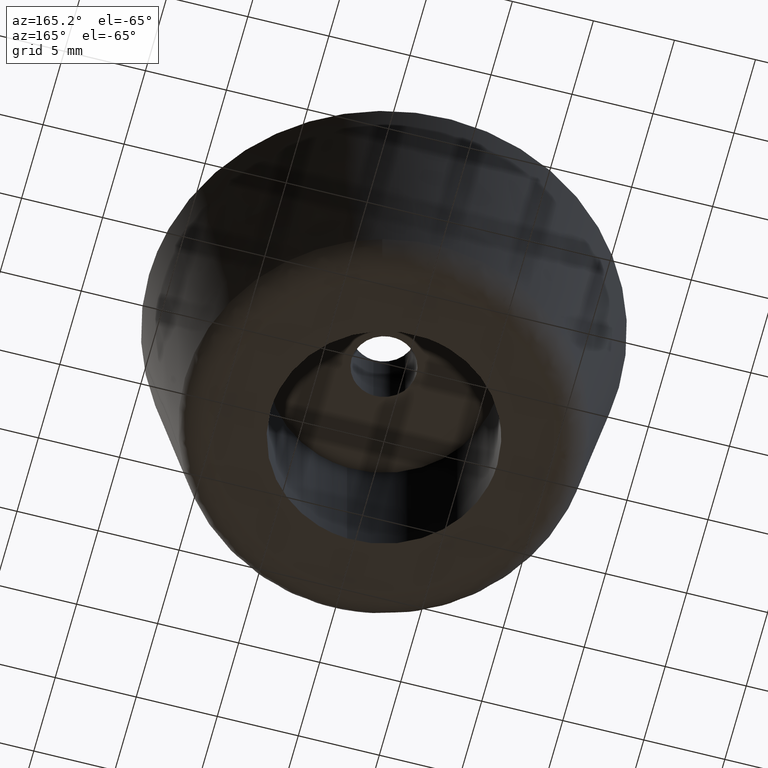
[diagram: clean part render]
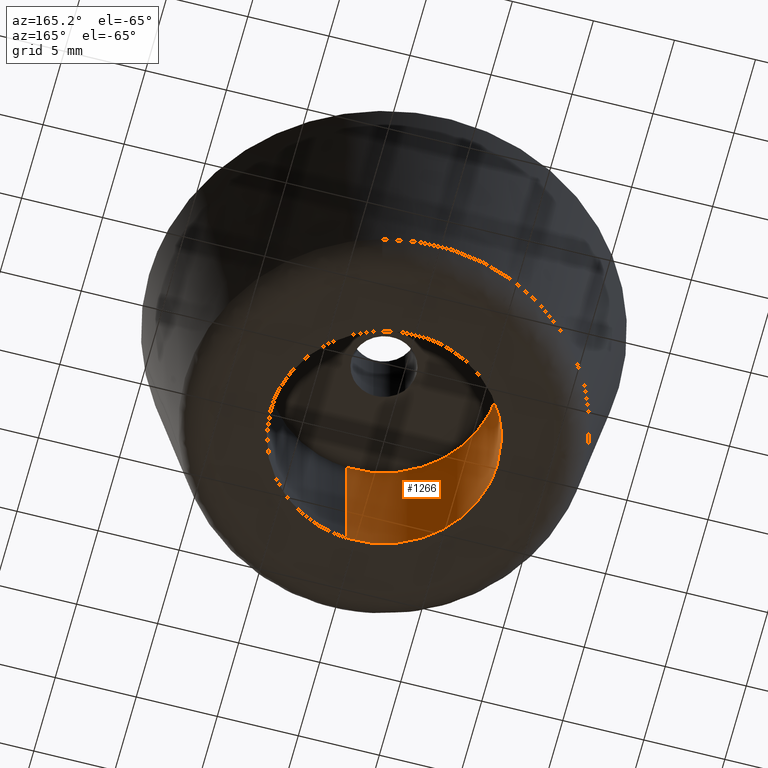
[diagram: same view with one face highlighted and labeled with its STEP entity id]
A machine part, auxiliary view. The second image highlights one B-rep face of the part: STEP entity #1266.
In plain terms, the highlighted face is a freeform B-spline surface patch.
Its self-contained STEP definition (entity closure, byte-faithful):
#1103=CARTESIAN_POINT('',(-0.826234102055871,6.951067343118522,-2.302776E-014));
#1104=VERTEX_POINT('',#1103);
#1122=CARTESIAN_POINT('',(0.427331635497001,-6.986944086883543,-3.233525E-014));
#1123=VERTEX_POINT('',#1122);
#1137=CARTESIAN_POINT('',(0.427331736019021,-6.986944080735587,10.0));
#1138=VERTEX_POINT('',#1137);
#1139=CARTESIAN_POINT('',(0.427331736019021,-6.986944080735587,10.0));
#1140=CARTESIAN_POINT('',(0.427331635497001,-6.986944086883543,-3.233525E-014));
#1141=QUASI_UNIFORM_CURVE('',1,(#1139,#1140),.UNSPECIFIED.,.F.,.U.);
#1142=EDGE_CURVE('',#1138,#1123,#1141,.T.);
#1159=CARTESIAN_POINT('',(-0.826234170480709,6.951067334985302,10.0));
#1160=VERTEX_POINT('',#1159);
#1176=CARTESIAN_POINT('',(-0.826234170480709,6.951067334985302,10.0));
#1177=CARTESIAN_POINT('',(-0.826234102055871,6.951067343118522,-2.302776E-014));
#1178=QUASI_UNIFORM_CURVE('',1,(#1176,#1177),.UNSPECIFIED.,.F.,.U.);
#1179=EDGE_CURVE('',#1160,#1104,#1178,.T.);
#1184=CARTESIAN_POINT('',(0.427339776743999,-6.986943588953067,10.250000000000000));
#1185=CARTESIAN_POINT('',(-6.559603812209068,-7.414283365697066,10.250000000000002));
#1186=CARTESIAN_POINT('',(-6.986943588953067,-0.427339776743999,10.250000000000000));
#1187=CARTESIAN_POINT('',(-7.390503377127691,6.170804435876506,10.250000000000002));
#1188=CARTESIAN_POINT('',(-0.826239642597309,6.951066684545665,10.250000000000002));
#1189=CARTESIAN_POINT('',(0.427339776743999,-6.986943588953067,-0.256250000000000));
#1190=CARTESIAN_POINT('',(-6.559603812209068,-7.414283365697066,-0.256250000000000));
#1191=CARTESIAN_POINT('',(-6.986943588953067,-0.427339776743999,-0.256250000000000));
#1192=CARTESIAN_POINT('',(-7.390503377127691,6.170804435876506,-0.256250000000000));
#1193=CARTESIAN_POINT('',(-0.826239642597309,6.951066684545665,-0.256250000000000));
#1201=(BOUNDED_SURFACE()B_SPLINE_SURFACE(2,1,((#1184,#1189),(#1185,#1190),(#1186,#1191),(#1187,#1192),(#1188,#1193)),.UNSPECIFIED.,.F.,.F.,.U.)B_SPLINE_SURFACE_WITH_KNOTS((3,2,3),(2,2),(0.0,11.597979746446660,22.732040303035451),(0.0,10.506250000000000),.UNSPECIFIED.)GEOMETRIC_REPRESENTATION_ITEM()RATIONAL_B_SPLINE_SURFACE(((1.0,1.0),(0.707106781186548,0.707106781186548),(1.0,1.0),(0.718822509939086,0.718822509939086),(0.977505800795127,0.977505800795127)))REPRESENTATION_ITEM('')SURFACE());
#1202=CARTESIAN_POINT('',(-7.0,0.0,0.0));
#1203=VERTEX_POINT('',#1202);
#1204=CARTESIAN_POINT('',(-7.0,0.0,0.0));
#1205=CARTESIAN_POINT('',(-6.999999999999999,6.217226672156619,0.0));
#1206=CARTESIAN_POINT('',(-0.826234102055871,6.951067343118522,-2.302776E-014));
#1214=(BOUNDED_CURVE()B_SPLINE_CURVE(2,(#1204,#1205,#1206),.UNSPECIFIED.,.F.,.U.)B_SPLINE_CURVE_WITH_KNOTS((3,3),(0.0,0.229562608224401),.UNSPECIFIED.)CURVE()GEOMETRIC_REPRESENTATION_ITEM()RATIONAL_B_SPLINE_CURVE((1.0,0.731050675031775,0.956027018222732))REPRESENTATION_ITEM(''));
#1215=EDGE_CURVE('',#1203,#1104,#1214,.T.);
#1216=ORIENTED_EDGE('',*,*,#1215,.T.);
#1217=ORIENTED_EDGE('',*,*,#1179,.F.);
#1218=CARTESIAN_POINT('',(-7.0,0.0,10.0));
#1219=VERTEX_POINT('',#1218);
#1220=CARTESIAN_POINT('',(-7.0,0.0,10.0));
#1221=CARTESIAN_POINT('',(-6.999999999999998,6.217226610524729,10.0));
#1222=CARTESIAN_POINT('',(-0.826234170480709,6.951067334985302,10.0));
#1230=(BOUNDED_CURVE()B_SPLINE_CURVE(2,(#1220,#1221,#1222),.UNSPECIFIED.,.F.,.U.)B_SPLINE_CURVE_WITH_KNOTS((3,3),(0.0,0.229562606560768),.UNSPECIFIED.)CURVE()GEOMETRIC_REPRESENTATION_ITEM()RATIONAL_B_SPLINE_CURVE((1.0,0.731050676980841,0.956027014961940))REPRESENTATION_ITEM(''));
#1231=EDGE_CURVE('',#1219,#1160,#1230,.T.);
#1232=ORIENTED_EDGE('',*,*,#1231,.F.);
#1233=CARTESIAN_POINT('',(0.427331736019021,-6.986944080735587,10.0));
#1234=CARTESIAN_POINT('',(0.213865311455282,-7.000000000000001,10.0));
#1235=CARTESIAN_POINT('',(0.0,-7.0,10.0));
#1236=CARTESIAN_POINT('',(-6.999999999999999,-6.999999999999999,10.0));
#1237=CARTESIAN_POINT('',(-7.0,0.0,10.0));
#1245=(BOUNDED_CURVE()B_SPLINE_CURVE(2,(#1233,#1234,#1235,#1236,#1237),.UNSPECIFIED.,.F.,.U.)B_SPLINE_CURVE_WITH_KNOTS((3,2,3),(0.739333160812555,0.750000000000000,1.0),.UNSPECIFIED.)CURVE()GEOMETRIC_REPRESENTATION_ITEM()RATIONAL_B_SPLINE_CURVE((0.976072467248138,0.987503020543295,1.0,0.707106781186547,1.0))REPRESENTATION_ITEM(''));
#1246=EDGE_CURVE('',#1138,#1219,#1245,.T.);
#1247=ORIENTED_EDGE('',*,*,#1246,.F.);
#1248=ORIENTED_EDGE('',*,*,#1142,.T.);
#1249=CARTESIAN_POINT('',(0.427331635497001,-6.986944086883544,-3.233525E-014));
#1250=CARTESIAN_POINT('',(0.213865261053355,-6.999999999999999,0.0));
#1251=CARTESIAN_POINT('',(0.0,-7.0,0.0));
#1252=CARTESIAN_POINT('',(-6.999999999999999,-6.999999999999999,0.0));
#1253=CARTESIAN_POINT('',(-7.0,0.0,0.0));
#1261=(BOUNDED_CURVE()B_SPLINE_CURVE(2,(#1249,#1250,#1251,#1252,#1253),.UNSPECIFIED.,.F.,.U.)B_SPLINE_CURVE_WITH_KNOTS((3,2,3),(0.739333163295008,0.750000000000000,1.0),.UNSPECIFIED.)CURVE()GEOMETRIC_REPRESENTATION_ITEM()RATIONAL_B_SPLINE_CURVE((0.976072472568516,0.987503023451669,1.0,0.707106781186547,1.0))REPRESENTATION_ITEM(''));
#1262=EDGE_CURVE('',#1123,#1203,#1261,.T.);
#1263=ORIENTED_EDGE('',*,*,#1262,.T.);
#1264=EDGE_LOOP('',(#1216,#1217,#1232,#1247,#1248,#1263));
#1265=FACE_OUTER_BOUND('',#1264,.T.);
#1266=ADVANCED_FACE('',(#1265),#1201,.F.);